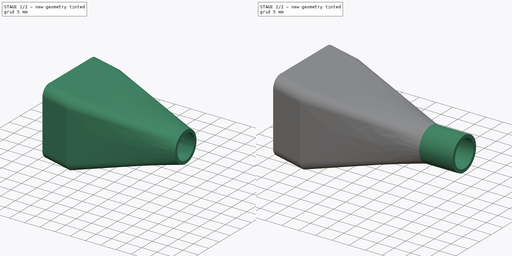
[diagram: build sequence overview — one tinted view per stage of 2, left to right]
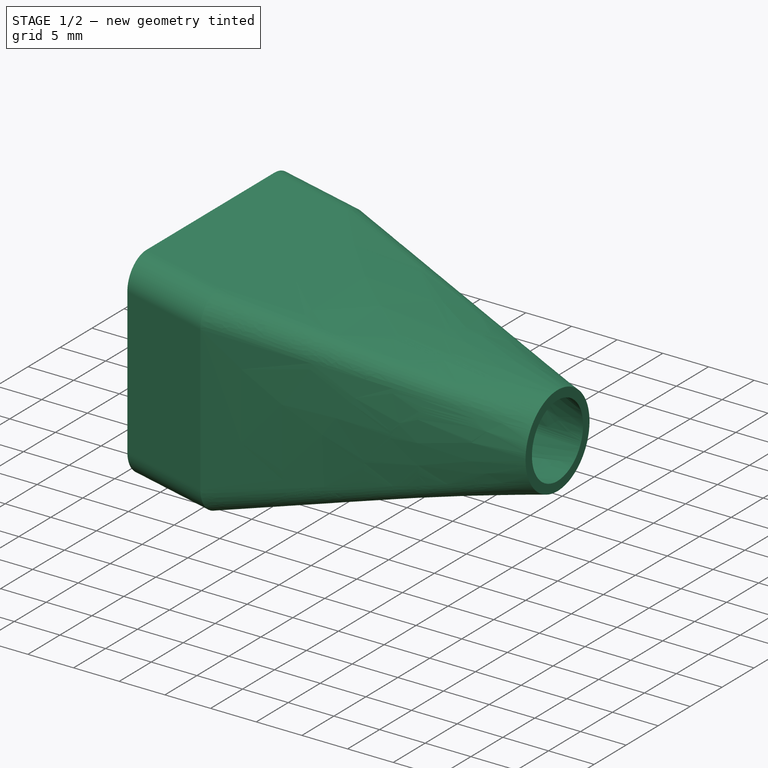
[diagram: stage 1 of 2 — iso view after this stage's code; geometry added in this stage tinted green]
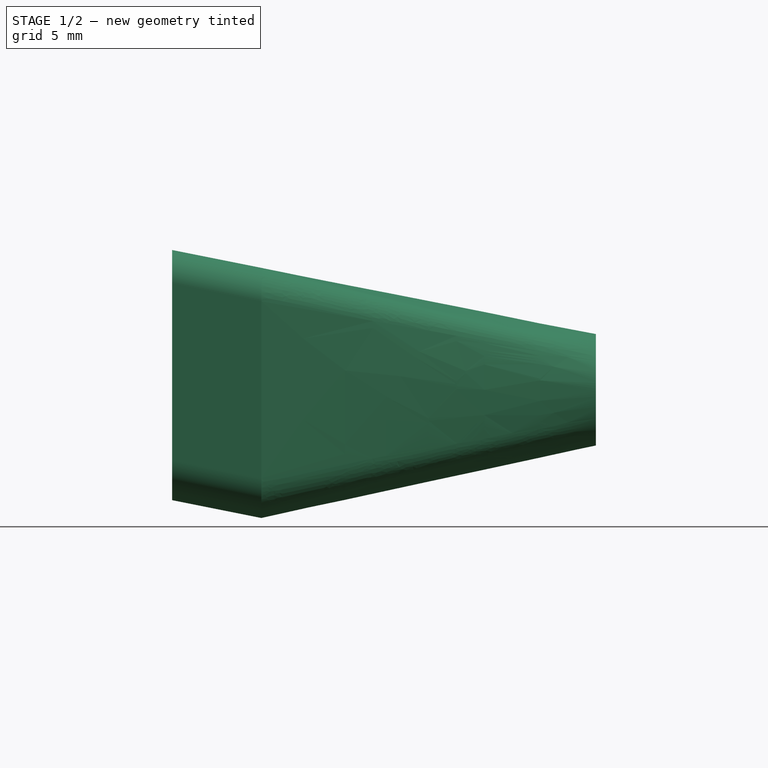
[diagram: stage 1 of 2 — front view after this stage's code; geometry added in this stage tinted green]
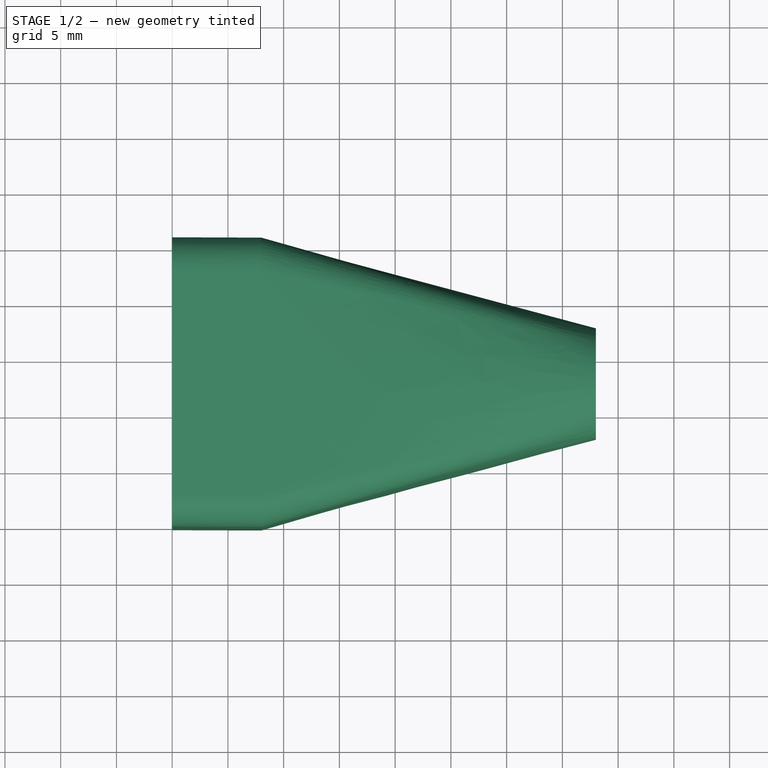
[diagram: stage 1 of 2 — top view after this stage's code; geometry added in this stage tinted green]
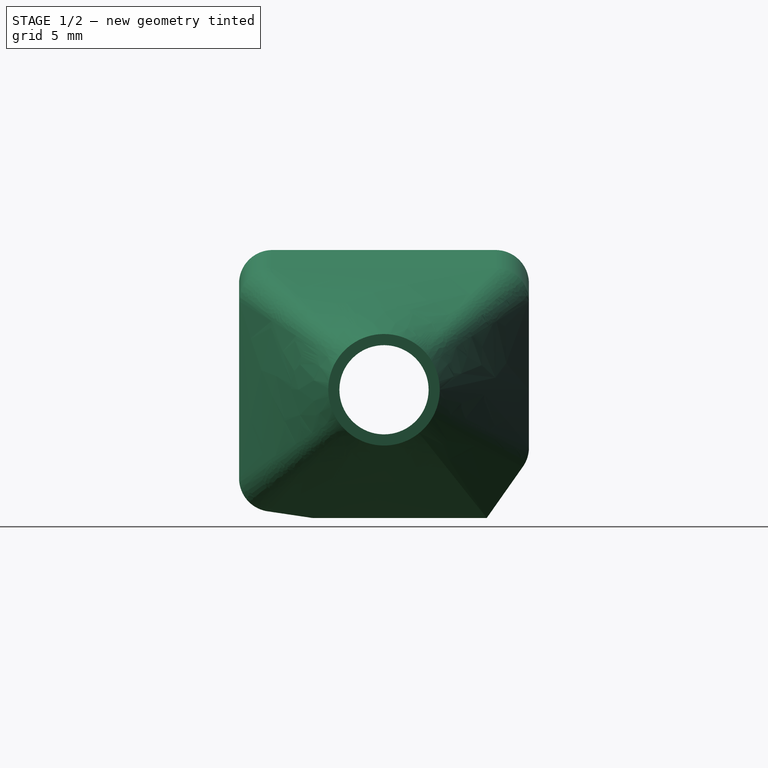
[diagram: stage 1 of 2 — right view after this stage's code; geometry added in this stage tinted green]
FCSTD DOCUMENT  (FreeCAD 0.20R27319 (Git))
Label: USB-Port-Raincover
License: All rights reserved
LicenseURL: http://en.wikipedia.org/wiki/All_rights_reserved
objects: Sketcher::SketchObject×4, PartDesign::Pad×2, PartDesign::ShapeBinder×1, PartDesign::AdditiveLoft×1, PartDesign::CoordinateSystem×1, PartDesign::Body×1
note: 13 computed .brp shape members not serialized (recipe doc carries the construction recipe); baked Part::Feature solids carry a one-line shape summary decoded from their .brp

FEATURE [PartDesign::ShapeBinder] ShapeBinder001
  Placement = pos=(8,0,-1.6) rot=(0,0,1;0rad)
  TraceSupport = false
FEATURE [Sketcher::SketchObject] Sketch  label="Sketch - USB Start"
  ExternalGeometry = -> [ShapeBinder001]
  FullyConstrained = true
  MapMode = 5
  Placement = pos=(138,0,-1.6) rot=(0.57735,0.57735,0.57735;2.0944rad)
  Support = -> [ShapeBinder001]
  sketch-geometry (20):
    g0: LineSegment StartX=22.8322 StartY=20.4344 StartZ=0 EndX=42.8322 EndY=20.434 EndZ=0
    g1: LineSegment StartX=44.8322 StartY=18.434 StartZ=0 EndX=44.8322 EndY=5.32236 EndZ=0
    g2: LineSegment StartX=44.4673 StartY=4.17071 StartZ=0 EndX=41.5298 EndY=-2.4e-14 EndZ=0
    g3: LineSegment StartX=41.5298 StartY=-2.4e-14 StartZ=0 EndX=26.4892 EndY=-2.4e-14 EndZ=0
    g4: LineSegment StartX=26.4892 StartY=-2.4e-14 StartZ=0 EndX=22.5379 EndY=0.587785 EndZ=0
    g5: LineSegment StartX=20.8322 StartY=2.56602 StartZ=0 EndX=20.8322 EndY=18.4344 EndZ=0
    g6: ArcOfCircle CenterX=22.8322 CenterY=18.4344 CenterZ=0 NormalX=0 NormalY=0 NormalZ=1 AngleXU=0 Radius=2 StartAngle=1.57078 EndAngle=3.14159
    g7: ArcOfCircle CenterX=42.8322 CenterY=18.434 CenterZ=0 NormalX=0 NormalY=0 NormalZ=1 AngleXU=0 Radius=2 StartAngle=-1.839e-13 EndAngle=1.57078
    g8: ArcOfCircle CenterX=42.8322 CenterY=5.32236 CenterZ=0 NormalX=0 NormalY=0 NormalZ=1 AngleXU=0 Radius=2 StartAngle=5.66957 EndAngle=6.28319
    g9: ArcOfCircle CenterX=22.8322 CenterY=2.56602 CenterZ=0 NormalX=0 NormalY=0 NormalZ=1 AngleXU=0 Radius=2 StartAngle=3.14159 EndAngle=4.56472
    g10: LineSegment StartX=22.8322 StartY=21.4344 StartZ=0 EndX=42.8322 EndY=21.434 EndZ=0
    g11: LineSegment StartX=45.8322 StartY=18.434 StartZ=0 EndX=45.8322 EndY=5.32236 EndZ=0
    g12: LineSegment StartX=45.2849 StartY=3.59489 StartZ=0 EndX=42.0487 EndY=-1 EndZ=0
    g13: LineSegment StartX=42.0487 StartY=-1 StartZ=0 EndX=26.4152 EndY=-1 EndZ=0
    g14: LineSegment StartX=26.4152 StartY=-1 StartZ=0 EndX=22.3907 EndY=-0.40133 EndZ=0
    g15: LineSegment StartX=19.8322 StartY=2.56602 StartZ=0 EndX=19.8322 EndY=18.4344 EndZ=0
    g16: ArcOfCircle CenterX=22.8322 CenterY=18.4344 CenterZ=0 NormalX=0 NormalY=0 NormalZ=1 AngleXU=0 Radius=3 StartAngle=1.57078 EndAngle=3.14159
    g17: ArcOfCircle CenterX=42.8322 CenterY=18.434 CenterZ=0 NormalX=0 NormalY=0 NormalZ=1 AngleXU=0 Radius=3 StartAngle=2.0966e-12 EndAngle=1.57078
    g18: ArcOfCircle CenterX=42.8322 CenterY=5.32236 CenterZ=0 NormalX=0 NormalY=0 NormalZ=1 AngleXU=0 Radius=3 StartAngle=5.66957 EndAngle=6.28319
    g19: ArcOfCircle CenterX=22.8322 CenterY=2.56602 CenterZ=0 NormalX=0 NormalY=0 NormalZ=1 AngleXU=0 Radius=3 StartAngle=3.14159 EndAngle=4.56471
  constraints (41):
    c: Coincident(g2,g3)
    c: Horizontal(g3)
    c: Coincident(g3,g4)
    c: Tangent(g0,g6) = 1.5708
    c: Tangent(g5,g6) = 1.5708
    c: Tangent(g0,g7) = 1.5708
    c: Tangent(g1,g7) = 1.5708
    c: Tangent(g1,g8) = 1.5708
    c: Tangent(g2,g8) = 1.5708
    c: Tangent(g4,g9) = 1.5708
    c: Tangent(g5,g9) = 1.5708
    c: Coincident(g-12,g0)
    c: Coincident(g5,g-5)
    c: Coincident(g0,g-4)
    c: Coincident(g4,g-7)
    c: Coincident(g2,g-9)
    c: Coincident(g1,g-11)
    c: Coincident(g2,g-10)
    c: Equal(g3,g-8)
    c: Coincident(g12,g13)
    c: Horizontal(g13)
    c: Coincident(g13,g14)
    c: Tangent(g10,g16) = 1.5708
    c: Tangent(g15,g16) = 1.5708
    c: Tangent(g10,g17) = 1.5708
    c: Tangent(g11,g17) = 1.5708
    c: Tangent(g11,g18) = 1.5708
    c: Tangent(g12,g18) = 1.5708
    c: Tangent(g14,g19) = 1.5708
    c: Tangent(g15,g19) = 1.5708
    c: Equal(g16,g17)
    c: Equal(g17,g19)
    c: Equal(g19,g18)
    c: Radius(g16) = 3
    c: Coincident(g16,g6)
    c: Coincident(g17,g7)
    c: Coincident(g18,g8)
    c: Coincident(g9,g19)
    c: DistanceY(g12,g2) = 1
    c: Parallel(g12,g2)
    c: Distance(g14,g4) = 1
FEATURE [Sketcher::SketchObject] Sketch001  label="Sketch - Kabel Start"
  AttachmentOffset = pos=(0,0,30) rot=(0,0,1;0rad)
  ExternalGeometry = -> [Sketch]
  FullyConstrained = true
  MapMode = 5
  Placement = pos=(168,0,-1.6) rot=(0.57735,0.57735,0.57735;2.0944rad)
  Support = -> [ShapeBinder001]
  sketch-geometry (22):
    g0: Circle CenterX=32.8322 CenterY=10.5 CenterZ=0 NormalX=0 NormalY=0 NormalZ=1 AngleXU=0 Radius=4
    g1: ArcOfCircle CenterX=32.8322 CenterY=10.5 CenterZ=0 NormalX=0 NormalY=0 NormalZ=1 AngleXU=0 Radius=4 StartAngle=0.829981 EndAngle=2.31159
    g2: ArcOfCircle CenterX=32.8322 CenterY=10.5 CenterZ=0 NormalX=0 NormalY=0 NormalZ=1 AngleXU=0 Radius=4 StartAngle=0.547963 EndAngle=0.829981
    g3: LineSegment StartX=32.8322 StartY=10.5 StartZ=0 EndX=42.8322 EndY=21.434 EndZ=0
    g4: LineSegment StartX=32.8322 StartY=10.5 StartZ=0 EndX=45.8322 EndY=18.434 EndZ=0
    g5: LineSegment StartX=32.8322 StartY=10.5 StartZ=0 EndX=19.8322 EndY=2.56602 EndZ=0
    g6: LineSegment StartX=32.8322 StartY=10.5 StartZ=0 EndX=22.3907 EndY=-0.40133 EndZ=0
    g7: LineSegment StartX=32.8322 StartY=10.5 StartZ=0 EndX=26.4152 EndY=-1 EndZ=0
    g8: LineSegment StartX=32.8322 StartY=10.5 StartZ=0 EndX=42.0487 EndY=-1 EndZ=0
    g9: LineSegment StartX=32.8322 StartY=10.5 StartZ=0 EndX=45.2849 EndY=3.59489 EndZ=0
    g10: LineSegment StartX=32.8322 StartY=10.5 StartZ=0 EndX=45.8322 EndY=5.32236 EndZ=0
    g11: LineSegment StartX=32.8322 StartY=10.5 StartZ=0 EndX=22.8322 EndY=21.4344 EndZ=0
    g12: LineSegment StartX=32.8322 StartY=10.5 StartZ=0 EndX=19.8322 EndY=18.4344 EndZ=0
    g13: ArcOfCircle CenterX=32.8322 CenterY=10.5 CenterZ=0 NormalX=0 NormalY=0 NormalZ=1 AngleXU=0 Radius=4 StartAngle=2.31159 EndAngle=2.59361
    g14: ArcOfCircle CenterX=32.8322 CenterY=10.5 CenterZ=0 NormalX=0 NormalY=0 NormalZ=1 AngleXU=0 Radius=4 StartAngle=2.59361 EndAngle=3.68956
    g15: ArcOfCircle CenterX=32.8322 CenterY=10.5 CenterZ=0 NormalX=0 NormalY=0 NormalZ=1 AngleXU=0 Radius=4 StartAngle=3.68956 EndAngle=3.94854
    g16: ArcOfCircle CenterX=32.8322 CenterY=10.5 CenterZ=0 NormalX=0 NormalY=0 NormalZ=1 AngleXU=0 Radius=4 StartAngle=3.94854 EndAngle=4.20343
    g17: ArcOfCircle CenterX=32.8322 CenterY=10.5 CenterZ=0 NormalX=0 NormalY=0 NormalZ=1 AngleXU=0 Radius=4 StartAngle=4.20343 EndAngle=5.388
    g18: ArcOfCircle CenterX=32.8322 CenterY=10.5 CenterZ=0 NormalX=0 NormalY=0 NormalZ=1 AngleXU=0 Radius=4 StartAngle=5.388 EndAngle=5.77689
    g19: ArcOfCircle CenterX=32.8322 CenterY=10.5 CenterZ=0 NormalX=0 NormalY=0 NormalZ=1 AngleXU=0 Radius=4 StartAngle=5.77689 EndAngle=5.90416
    g20: ArcOfCircle CenterX=32.8322 CenterY=10.5 CenterZ=0 NormalX=0 NormalY=0 NormalZ=1 AngleXU=0 Radius=4 StartAngle=5.90416 EndAngle=6.83115
    g21: Circle CenterX=32.8322 CenterY=10.5 CenterZ=0 NormalX=0 NormalY=0 NormalZ=1 AngleXU=0 Radius=5
  constraints (55):
    c: Diameter(g0) = 8
    c: Symmetric(g-3,g-4,g0)
    c: Coincident(g1,g0)
    c: PointOnObject(g1,g0)
    c: Coincident(g2,g1)
    c: Coincident(g2,g1)
    c: Coincident(g3,g1)
    c: Coincident(g3,g-3)
    c: Coincident(g4,g1)
    c: Coincident(g4,g-3)
    c: Coincident(g5,g1)
    c: Coincident(g5,g-4)
    c: PointOnObject(g1,g3)
    c: Coincident(g6,g1)
    c: Coincident(g6,g-4)
    c: Coincident(g7,g1)
    c: Coincident(g7,g-6)
    c: Coincident(g8,g1)
    c: Coincident(g8,g-6)
    c: Coincident(g9,g1)
    c: Coincident(g9,g-7)
    c: Coincident(g10,g1)
    c: Coincident(g10,g-7)
    c: Coincident(g11,g1)
    c: Coincident(g11,g-5)
    c: Coincident(g12,g1)
    c: Coincident(g12,g-5)
    c: PointOnObject(g1,g11)
    c: Coincident(g13,g1)
    c: Coincident(g13,g1)
    c: Coincident(g14,g1)
    c: Coincident(g14,g13)
    c: PointOnObject(g14,g5)
    c: Coincident(g15,g1)
    c: Coincident(g15,g14)
    c: PointOnObject(g15,g6)
    c: Coincident(g16,g1)
    c: Coincident(g16,g15)
    c: Coincident(g17,g1)
    c: Coincident(g17,g16)
    c: Coincident(g18,g1)
    c: Coincident(g18,g17)
    c: Coincident(g19,g1)
    c: Coincident(g19,g18)
    c: Coincident(g20,g1)
    c: Coincident(g20,g19)
    c: Coincident(g20,g2)
    c: PointOnObject(g2,g4)
    c: PointOnObject(g19,g10)
    c: PointOnObject(g18,g9)
    c: PointOnObject(g17,g8)
    c: PointOnObject(g16,g7)
    c: PointOnObject(g13,g12)
    c: Coincident(g21,g1)
    c: Diameter(g21) = 10
FEATURE [Sketcher::SketchObject] Sketch002  label="Sketch - USB End"
  AttachmentOffset = pos=(0,0,5) rot=(0,0,1;0rad)
  ExternalGeometry = -> [ShapeBinder001]
  FullyConstrained = true
  MapMode = 5
  Placement = pos=(143,0,-1.6) rot=(0.57735,0.57735,0.57735;2.0944rad)
  Support = -> [ShapeBinder001]
  sketch-geometry (20):
    g0: LineSegment StartX=22.8322 StartY=20.4344 StartZ=0 EndX=42.8322 EndY=20.434 EndZ=0
    g1: LineSegment StartX=44.8322 StartY=18.434 StartZ=0 EndX=44.8322 EndY=5.32236 EndZ=0
    g2: LineSegment StartX=44.4673 StartY=4.17071 StartZ=0 EndX=41.5298 EndY=-2.4e-14 EndZ=0
    g3: LineSegment StartX=41.5298 StartY=-2.4e-14 StartZ=0 EndX=26.4892 EndY=-2.4e-14 EndZ=0
    g4: LineSegment StartX=26.4892 StartY=-2.4e-14 StartZ=0 EndX=22.5379 EndY=0.587785 EndZ=0
    g5: LineSegment StartX=20.8322 StartY=2.56602 StartZ=0 EndX=20.8322 EndY=18.4344 EndZ=0
    g6: ArcOfCircle CenterX=22.8322 CenterY=18.4344 CenterZ=0 NormalX=0 NormalY=0 NormalZ=1 AngleXU=0 Radius=2 StartAngle=1.57078 EndAngle=3.14159
    g7: ArcOfCircle CenterX=42.8322 CenterY=18.434 CenterZ=0 NormalX=0 NormalY=0 NormalZ=1 AngleXU=0 Radius=2 StartAngle=-1.839e-13 EndAngle=1.57078
    g8: ArcOfCircle CenterX=42.8322 CenterY=5.32236 CenterZ=0 NormalX=0 NormalY=0 NormalZ=1 AngleXU=0 Radius=2 StartAngle=5.66957 EndAngle=6.28319
    g9: ArcOfCircle CenterX=22.8322 CenterY=2.56602 CenterZ=0 NormalX=0 NormalY=0 NormalZ=1 AngleXU=0 Radius=2 StartAngle=3.14159 EndAngle=4.56472
    g10: LineSegment StartX=22.8322 StartY=21.4344 StartZ=0 EndX=42.8322 EndY=21.434 EndZ=0
    g11: LineSegment StartX=45.8322 StartY=18.434 StartZ=0 EndX=45.8322 EndY=5.32236 EndZ=0
    g12: LineSegment StartX=45.2849 StartY=3.59489 StartZ=0 EndX=42.0487 EndY=-1 EndZ=0
    g13: LineSegment StartX=42.0487 StartY=-1 StartZ=0 EndX=26.4152 EndY=-1 EndZ=0
    g14: LineSegment StartX=26.4152 StartY=-1 StartZ=0 EndX=22.3907 EndY=-0.40133 EndZ=0
    g15: LineSegment StartX=19.8322 StartY=2.56602 StartZ=0 EndX=19.8322 EndY=18.4344 EndZ=0
    g16: ArcOfCircle CenterX=22.8322 CenterY=18.4344 CenterZ=0 NormalX=0 NormalY=0 NormalZ=1 AngleXU=0 Radius=3 StartAngle=1.57078 EndAngle=3.14159
    g17: ArcOfCircle CenterX=42.8322 CenterY=18.434 CenterZ=0 NormalX=0 NormalY=0 NormalZ=1 AngleXU=0 Radius=3 StartAngle=2.0966e-12 EndAngle=1.57078
    g18: ArcOfCircle CenterX=42.8322 CenterY=5.32236 CenterZ=0 NormalX=0 NormalY=0 NormalZ=1 AngleXU=0 Radius=3 StartAngle=5.66957 EndAngle=6.28319
    g19: ArcOfCircle CenterX=22.8322 CenterY=2.56602 CenterZ=0 NormalX=0 NormalY=0 NormalZ=1 AngleXU=0 Radius=3 StartAngle=3.14159 EndAngle=4.56471
  constraints (41):
    c: Coincident(g2,g3)
    c: Horizontal(g3)
    c: Coincident(g3,g4)
    c: Tangent(g0,g6) = 1.5708
    c: Tangent(g5,g6) = 1.5708
    c: Tangent(g0,g7) = 1.5708
    c: Tangent(g1,g7) = 1.5708
    c: Tangent(g1,g8) = 1.5708
    c: Tangent(g2,g8) = 1.5708
    c: Tangent(g4,g9) = 1.5708
    c: Tangent(g5,g9) = 1.5708
    c: Coincident(g-12,g0)
    c: Coincident(g5,g-5)
    c: Coincident(g0,g-4)
    c: Coincident(g4,g-7)
    c: Coincident(g2,g-9)
    c: Coincident(g1,g-11)
    c: Coincident(g2,g-10)
    c: Equal(g3,g-8)
    c: Coincident(g12,g13)
    c: Horizontal(g13)
    c: Coincident(g13,g14)
    c: Tangent(g10,g16) = 1.5708
    c: Tangent(g15,g16) = 1.5708
    c: Tangent(g10,g17) = 1.5708
    c: Tangent(g11,g17) = 1.5708
    c: Tangent(g11,g18) = 1.5708
    c: Tangent(g12,g18) = 1.5708
    c: Tangent(g14,g19) = 1.5708
    c: Tangent(g15,g19) = 1.5708
    c: Equal(g16,g17)
    c: Equal(g17,g19)
    c: Equal(g19,g18)
    c: Radius(g16) = 3
    c: Coincident(g16,g6)
    c: Coincident(g17,g7)
    c: Coincident(g18,g8)
    c: Coincident(g9,g19)
    c: DistanceY(g12,g2) = 1
    c: Parallel(g12,g2)
    c: Distance(g14,g4) = 1
FEATURE [Sketcher::SketchObject] Sketch003  label="Sketch - Kabel End"
  AttachmentOffset = pos=(0,0,40) rot=(0,0,1;0rad)
  ExternalGeometry = -> [Sketch002]
  FullyConstrained = true
  MapMode = 5
  Placement = pos=(178,0,-1.6) rot=(0.57735,0.57735,0.57735;2.0944rad)
  Support = -> [ShapeBinder001]
  sketch-geometry (22):
    g0: Circle CenterX=32.8322 CenterY=10.5 CenterZ=0 NormalX=0 NormalY=0 NormalZ=1 AngleXU=0 Radius=4
    g1: ArcOfCircle CenterX=32.8322 CenterY=10.5 CenterZ=0 NormalX=0 NormalY=0 NormalZ=1 AngleXU=0 Radius=4 StartAngle=0.829981 EndAngle=2.31159
    g2: ArcOfCircle CenterX=32.8322 CenterY=10.5 CenterZ=0 NormalX=0 NormalY=0 NormalZ=1 AngleXU=0 Radius=4 StartAngle=0.547963 EndAngle=0.829981
    g3: LineSegment StartX=32.8322 StartY=10.5 StartZ=0 EndX=42.8322 EndY=21.434 EndZ=0
    g4: LineSegment StartX=32.8322 StartY=10.5 StartZ=0 EndX=45.8322 EndY=18.434 EndZ=0
    g5: LineSegment StartX=32.8322 StartY=10.5 StartZ=0 EndX=19.8322 EndY=2.56602 EndZ=0
    g6: LineSegment StartX=32.8322 StartY=10.5 StartZ=0 EndX=22.3907 EndY=-0.40133 EndZ=0
    g7: LineSegment StartX=32.8322 StartY=10.5 StartZ=0 EndX=26.4152 EndY=-1 EndZ=0
    g8: LineSegment StartX=32.8322 StartY=10.5 StartZ=0 EndX=42.0487 EndY=-1 EndZ=0
    g9: LineSegment StartX=32.8322 StartY=10.5 StartZ=0 EndX=45.2849 EndY=3.59489 EndZ=0
    g10: LineSegment StartX=32.8322 StartY=10.5 StartZ=0 EndX=45.8322 EndY=5.32236 EndZ=0
    g11: LineSegment StartX=32.8322 StartY=10.5 StartZ=0 EndX=22.8322 EndY=21.4344 EndZ=0
    g12: LineSegment StartX=32.8322 StartY=10.5 StartZ=0 EndX=19.8322 EndY=18.4344 EndZ=0
    g13: ArcOfCircle CenterX=32.8322 CenterY=10.5 CenterZ=0 NormalX=0 NormalY=0 NormalZ=1 AngleXU=0 Radius=4 StartAngle=2.31159 EndAngle=2.59361
    g14: ArcOfCircle CenterX=32.8322 CenterY=10.5 CenterZ=0 NormalX=0 NormalY=0 NormalZ=1 AngleXU=0 Radius=4 StartAngle=2.59361 EndAngle=3.68956
    g15: ArcOfCircle CenterX=32.8322 CenterY=10.5 CenterZ=0 NormalX=0 NormalY=0 NormalZ=1 AngleXU=0 Radius=4 StartAngle=3.68956 EndAngle=3.94854
    g16: ArcOfCircle CenterX=32.8322 CenterY=10.5 CenterZ=0 NormalX=0 NormalY=0 NormalZ=1 AngleXU=0 Radius=4 StartAngle=3.94854 EndAngle=4.20343
    g17: ArcOfCircle CenterX=32.8322 CenterY=10.5 CenterZ=0 NormalX=0 NormalY=0 NormalZ=1 AngleXU=0 Radius=4 StartAngle=4.20343 EndAngle=5.388
    g18: ArcOfCircle CenterX=32.8322 CenterY=10.5 CenterZ=0 NormalX=0 NormalY=0 NormalZ=1 AngleXU=0 Radius=4 StartAngle=5.388 EndAngle=5.77689
    g19: ArcOfCircle CenterX=32.8322 CenterY=10.5 CenterZ=0 NormalX=0 NormalY=0 NormalZ=1 AngleXU=0 Radius=4 StartAngle=5.77689 EndAngle=5.90416
    g20: ArcOfCircle CenterX=32.8322 CenterY=10.5 CenterZ=0 NormalX=0 NormalY=0 NormalZ=1 AngleXU=0 Radius=4 StartAngle=5.90416 EndAngle=6.83115
    g21: Circle CenterX=32.8322 CenterY=10.5 CenterZ=0 NormalX=0 NormalY=0 NormalZ=1 AngleXU=0 Radius=5
  constraints (55):
    c: Diameter(g0) = 8
    c: Symmetric(g-3,g-4,g0)
    c: Coincident(g1,g0)
    c: PointOnObject(g1,g0)
    c: Coincident(g2,g1)
    c: Coincident(g2,g1)
    c: Coincident(g3,g1)
    c: Coincident(g3,g-3)
    c: Coincident(g4,g1)
    c: Coincident(g4,g-3)
    c: Coincident(g5,g1)
    c: Coincident(g5,g-4)
    c: PointOnObject(g1,g3)
    c: Coincident(g6,g1)
    c: Coincident(g6,g-4)
    c: Coincident(g7,g1)
    c: Coincident(g7,g-6)
    c: Coincident(g8,g1)
    c: Coincident(g8,g-6)
    c: Coincident(g9,g1)
    c: Coincident(g9,g-7)
    c: Coincident(g10,g1)
    c: Coincident(g10,g-7)
    c: Coincident(g11,g1)
    c: Coincident(g11,g-5)
    c: Coincident(g12,g1)
    c: Coincident(g12,g-5)
    c: PointOnObject(g1,g11)
    c: Coincident(g13,g1)
    c: Coincident(g13,g1)
    c: Coincident(g14,g1)
    c: Coincident(g14,g13)
    c: PointOnObject(g14,g5)
    c: Coincident(g15,g1)
    c: Coincident(g15,g14)
    c: PointOnObject(g15,g6)
    c: Coincident(g16,g1)
    c: Coincident(g16,g15)
    c: Coincident(g17,g1)
    c: Coincident(g17,g16)
    c: Coincident(g18,g1)
    c: Coincident(g18,g17)
    c: Coincident(g19,g1)
    c: Coincident(g19,g18)
    c: Coincident(g20,g1)
    c: Coincident(g20,g19)
    c: Coincident(g20,g2)
    c: PointOnObject(g2,g4)
    c: PointOnObject(g19,g10)
    c: PointOnObject(g18,g9)
    c: PointOnObject(g17,g8)
    c: PointOnObject(g16,g7)
    c: PointOnObject(g13,g12)
    c: Coincident(g21,g1)
    c: Diameter(g21) = 10
FEATURE [PartDesign::AdditiveLoft] AdditiveLoft
  Closed = false
  Placement = pos=(8,0,-1.6) rot=(0,0,1;0rad)
  Profile = -> Sketch
  Refine = true
  Ruled = false
  Sections = -> [Sketch001]
FEATURE [PartDesign::Pad] Pad
  BaseFeature = -> AdditiveLoft
  Direction = (1,0,-0.2)
  Length = 8
  Length2 = 10
  Placement = pos=(8,0,-1.6) rot=(0,0,1;0rad)
  Profile = -> Sketch
  ReferenceAxis = -> Sketch [N_Axis]
  Refine = true
  Reversed = true
  Type = 0
  UseCustomVector = true
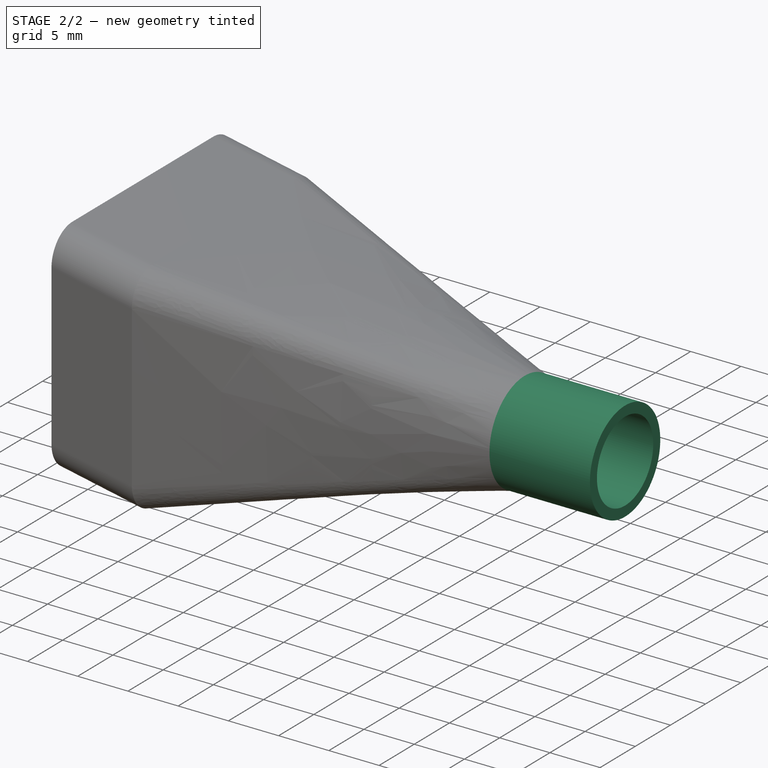
[diagram: stage 2 of 2 — iso view after this stage's code; geometry added in this stage tinted green]
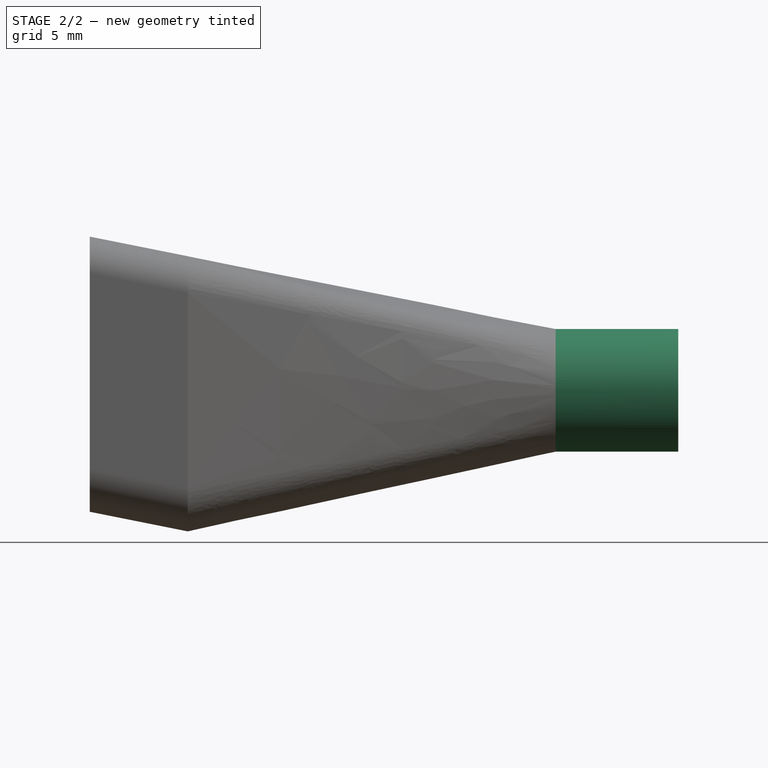
[diagram: stage 2 of 2 — front view after this stage's code; geometry added in this stage tinted green]
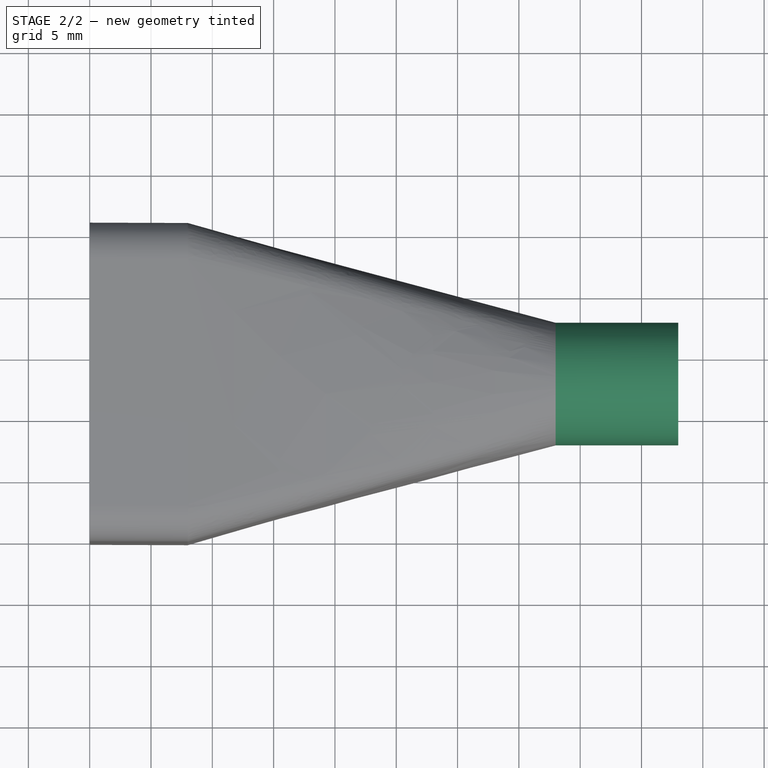
[diagram: stage 2 of 2 — top view after this stage's code; geometry added in this stage tinted green]
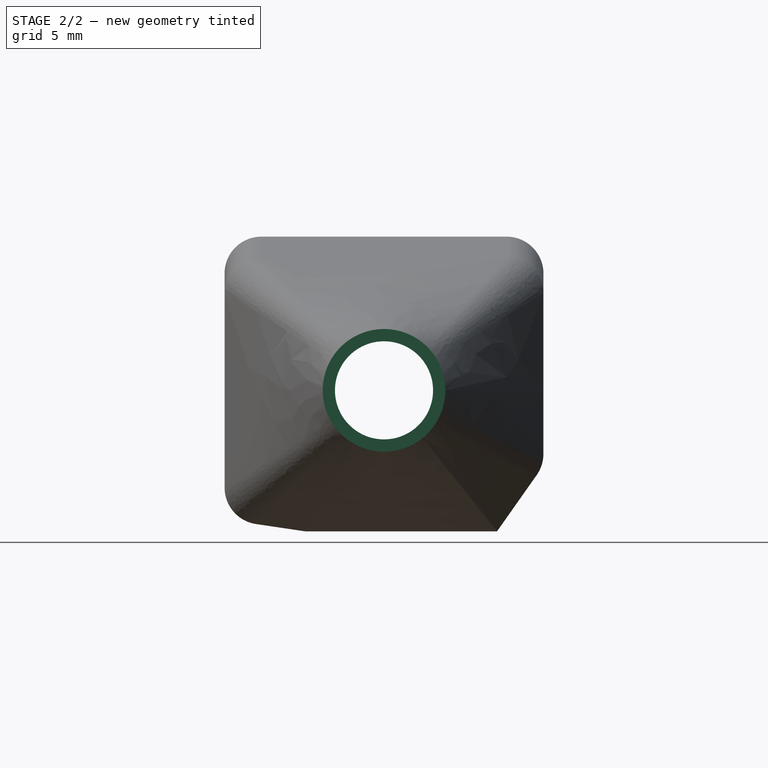
[diagram: stage 2 of 2 — right view after this stage's code; geometry added in this stage tinted green]
FEATURE [PartDesign::Pad] Pad001
  BaseFeature = -> Pad
  Direction = (1,0,0)
  Length = 10
  Length2 = 10
  Placement = pos=(8,0,-1.6) rot=(0,0,1;0rad)
  Profile = -> Sketch001
  ReferenceAxis = -> Sketch001 [N_Axis]
  Refine = true
  Type = 0
FEATURE [PartDesign::CoordinateSystem] Local_CS
  AttacherType = Attacher::AttachEngine3D
  MapMode = 1
  Placement = pos=(130,26.4892,-2.4e-14) rot=(0.611752,0.611752,0.501517;2.21187rad)
  Support = -> [Pad001]
FEATURE [PartDesign::Body] Body  label="USB-Raincover"
  Group = -> [ShapeBinder001,Sketch,Sketch001,Sketch002,Sketch003,AdditiveLoft,Pad,Pad001,Local_CS]
  Origin = -> Origin
  Tip = -> Pad001
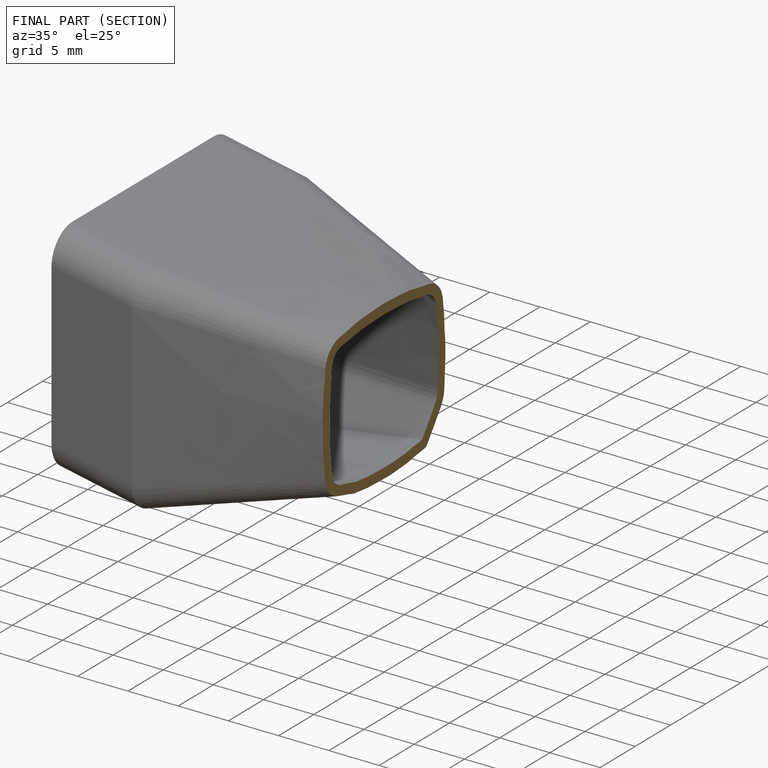
[diagram: finished part — half-section view (interior)]
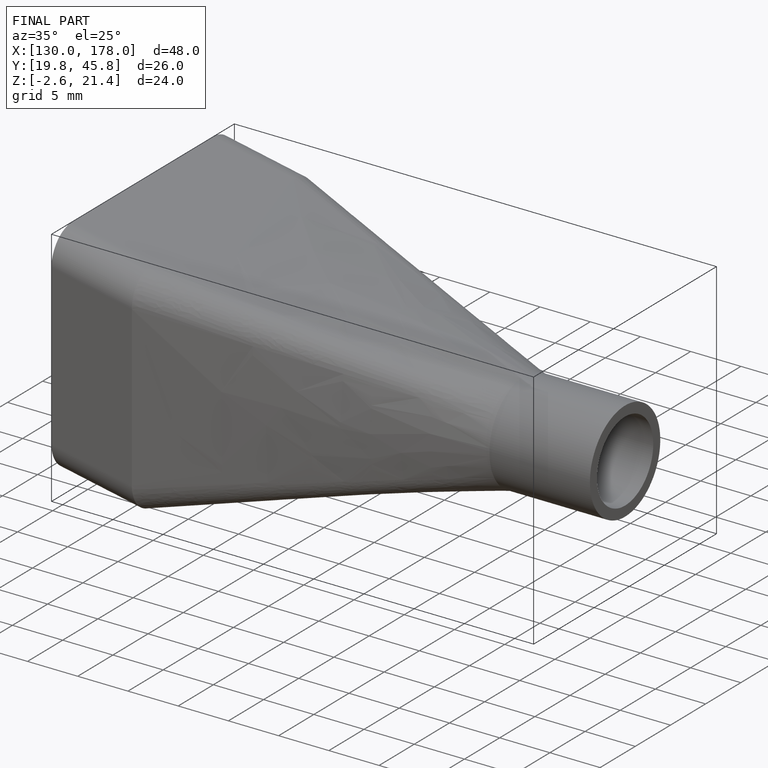
[diagram: finished part — iso view with bounding-box wireframe]
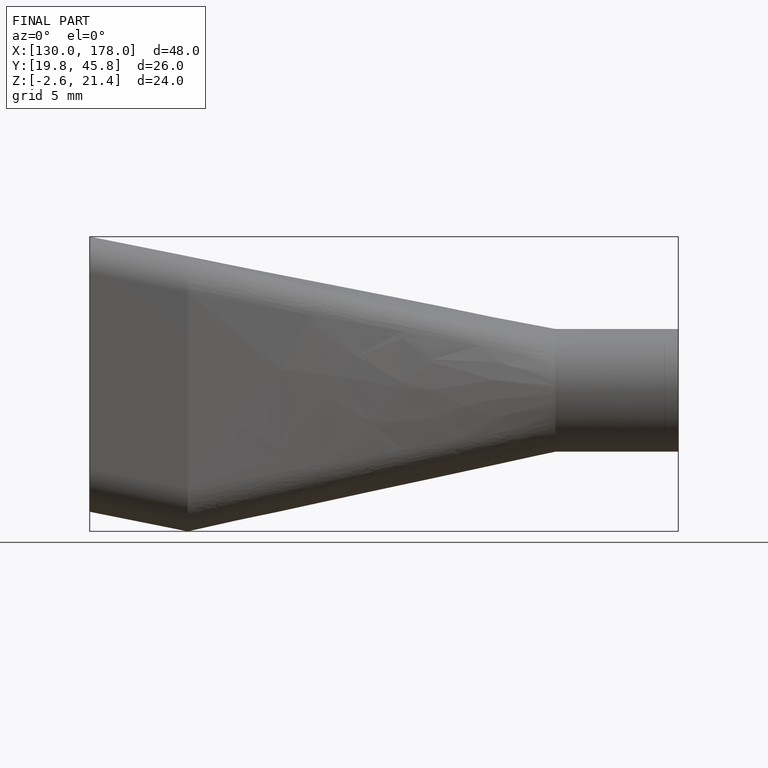
[diagram: finished part — front view with bounding-box wireframe]
